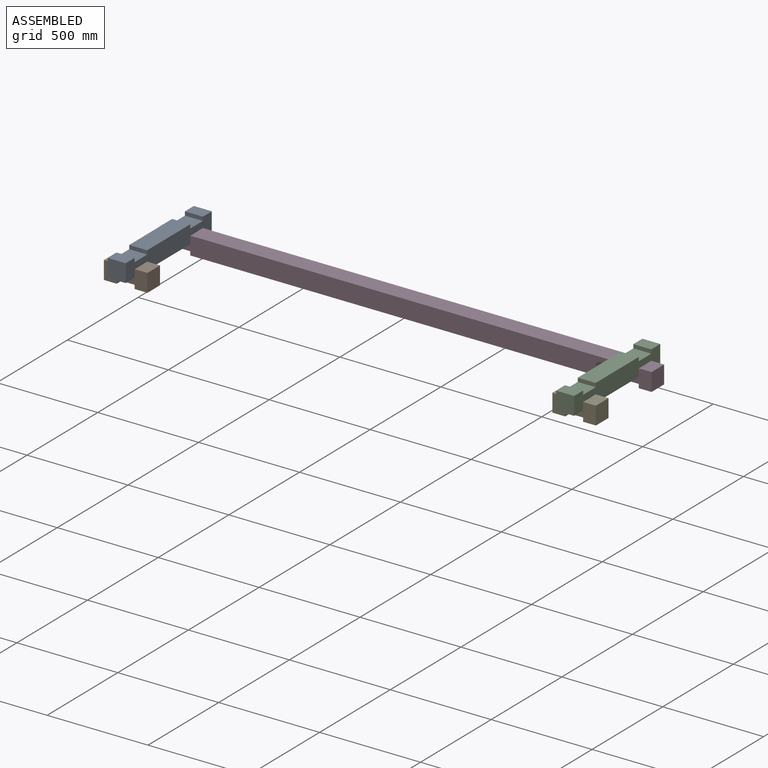
[diagram: assembled view]
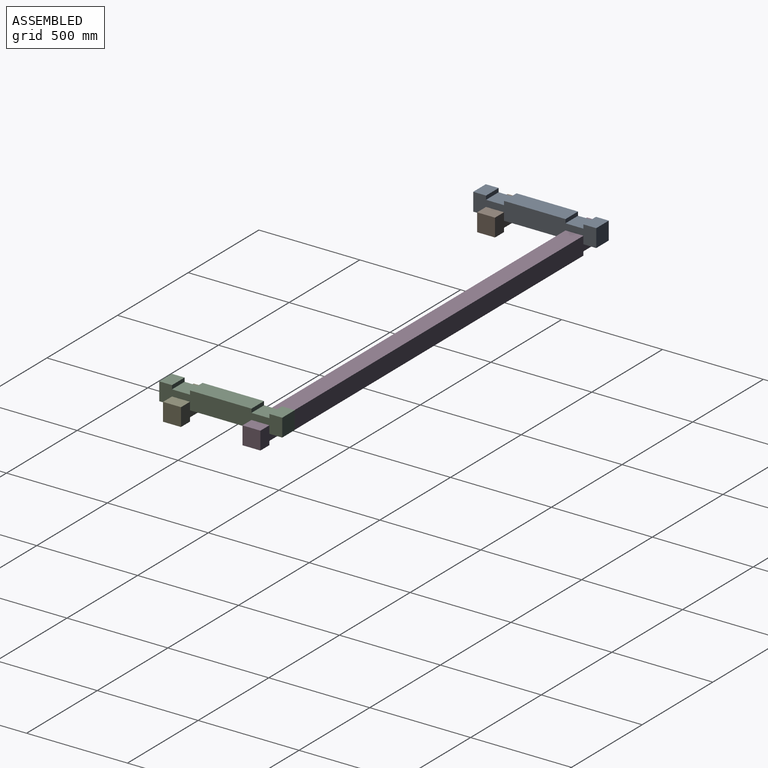
[diagram: assembled view, second angle]
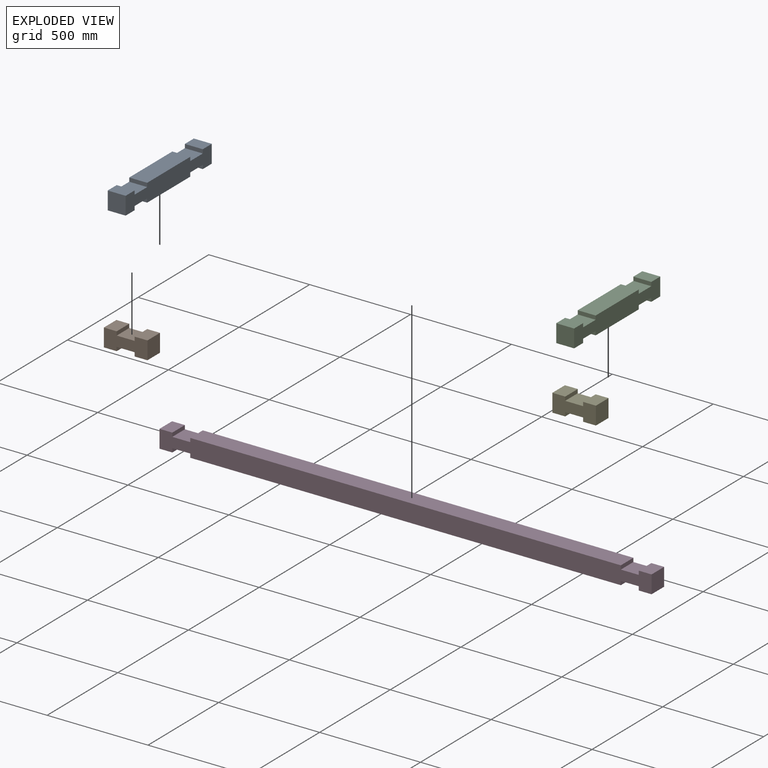
[diagram: exploded view]
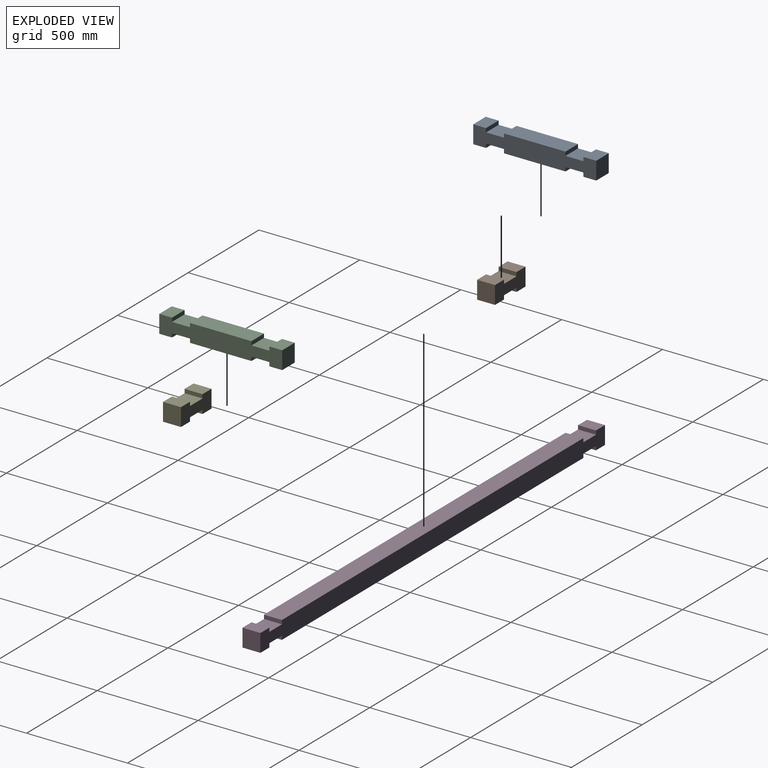
[diagram: exploded view, second angle]
ASSEMBLY  parts=5 mates=4
PART A: 22 faces, bbox 609.6x88.9x88.9 mm
  f0: plane 88.9x63.5mm, normal (0,0,1), area 5645.2mm2, adj f4,f5,f8,f18
  f1: plane 304.8x88.9mm, normal (0,0,1), area 27096.7mm2, adj f4,f5,f12,f16
  f2: plane 304.8x88.9mm, normal (0,0,-1), area 27096.7mm2, adj f4,f5,f13,f20
  f3: plane 88.9x63.5mm, normal (0,0,-1), area 5645.2mm2, adj f4,f5,f8,f14
  f4: plane 609.6x88.9mm, normal (0,-1,0), area 47419.3mm2, adj f0,f1,f2,f3,f6,f7,f8,f9
  f5: plane 609.6x88.9mm, normal (0,1,0), area 47419.3mm2, adj f0,f1,f2,f3,f6,f7,f8,f9
  f6: plane 88.9x63.5mm, normal (0,0,1), area 5645.1mm2, adj f4,f5,f9,f10
  f7: plane 88.9x63.5mm, normal (0,0,-1), area 5645.1mm2, adj f4,f5,f9,f19
  f8: plane 88.9x88.9mm, normal (1,0,0), area 7903.2mm2, adj f0,f3,f4,f5
  f9: plane 88.9x88.9mm, normal (-1,0,0), area 7903.2mm2, adj f4,f5,f6,f7
  f10: plane 88.9x19.05mm, normal (1,0,0), area 1693.5mm2, adj f4,f5,f6,f11
  f11: plane 88.9x88.9mm, normal (0,0,1), area 7903.2mm2, adj f4,f5,f10,f12
  f12: plane 88.9x19.05mm, normal (-1,0,0), area 1693.5mm2, adj f1,f4,f5,f11
  f13: plane 88.9x19.05mm, normal (1,0,0), area 1693.5mm2, adj f2,f4,f5,f15
  f14: plane 88.9x19.05mm, normal (-1,0,0), area 1693.5mm2, adj f3,f4,f5,f15
  f15: plane 88.9x88.9mm, normal (0,0,-1), area 7903.2mm2, adj f4,f5,f13,f14
  f16: plane 88.9x19.05mm, normal (1,0,0), area 1693.5mm2, adj f1,f4,f5,f17
  f17: plane 88.9x88.9mm, normal (0,0,1), area 7903.2mm2, adj f4,f5,f16,f18
  f18: plane 88.9x19.05mm, normal (-1,0,0), area 1693.5mm2, adj f0,f4,f5,f17
  f19: plane 88.9x19.05mm, normal (1,0,0), area 1693.5mm2, adj f4,f5,f7,f21
  f20: plane 88.9x19.05mm, normal (-1,0,0), area 1693.5mm2, adj f2,f4,f5,f21
  f21: plane 88.9x88.9mm, normal (0,0,-1), area 7903.2mm2, adj f4,f5,f19,f20
PART B: 14 faces, bbox 215.9x88.9x88.9 mm
  f0: plane 88.9x63.5mm, normal (0,0,1), area 5645.2mm2, adj f2,f3,f6,f13
  f1: plane 88.9x63.5mm, normal (0,0,-1), area 5645.2mm2, adj f2,f3,f6,f9
  f2: plane 215.9x88.9mm, normal (0,-1,0), area 15806.4mm2, adj f0,f1,f4,f5,f6,f7,f8,f9
  f3: plane 215.9x88.9mm, normal (0,1,0), area 15806.4mm2, adj f0,f1,f4,f5,f6,f7,f8,f9
  f4: plane 88.9x63.5mm, normal (0,0,1), area 5645.2mm2, adj f2,f3,f7,f11
  f5: plane 88.9x63.5mm, normal (0,0,-1), area 5645.2mm2, adj f2,f3,f7,f8
  f6: plane 88.9x88.9mm, normal (1,0,0), area 7903.2mm2, adj f0,f1,f2,f3
  f7: plane 88.9x88.9mm, normal (-1,0,0), area 7903.2mm2, adj f2,f3,f4,f5
  f8: plane 88.9x19.05mm, normal (1,0,0), area 1693.5mm2, adj f2,f3,f5,f10
  f9: plane 88.9x19.05mm, normal (-1,0,0), area 1693.5mm2, adj f1,f2,f3,f10
  f10: plane 88.9x88.9mm, normal (0,0,-1), area 7903.2mm2, adj f2,f3,f8,f9
  f11: plane 88.9x19.05mm, normal (1,0,0), area 1693.5mm2, adj f2,f3,f4,f12
  f12: plane 88.9x88.9mm, normal (0,0,1), area 7903.2mm2, adj f2,f3,f11,f13
  f13: plane 88.9x19.05mm, normal (-1,0,0), area 1693.5mm2, adj f0,f2,f3,f12
PART C: same geometry as A
PART D: 22 faces, bbox 2438.4x88.9x88.9 mm
  f0: plane 88.9x63.5mm, normal (0,0,1), area 5645.2mm2, adj f4,f5,f8,f18
  f1: plane 2133.6x88.9mm, normal (0,0,1), area 189677mm2, adj f4,f5,f12,f16
  f2: plane 2133.6x88.9mm, normal (0,0,-1), area 189677mm2, adj f4,f5,f13,f20
  f3: plane 88.9x63.5mm, normal (0,0,-1), area 5645.2mm2, adj f4,f5,f8,f14
  f4: plane 2438.4x88.9mm, normal (0,-1,0), area 209999.6mm2, adj f0,f1,f2,f3,f6,f7,f8,f9
  f5: plane 2438.4x88.9mm, normal (0,1,0), area 209999.6mm2, adj f0,f1,f2,f3,f6,f7,f8,f9
  f6: plane 88.9x63.5mm, normal (0,0,1), area 5645.2mm2, adj f4,f5,f9,f10
  f7: plane 88.9x63.5mm, normal (0,0,-1), area 5645.2mm2, adj f4,f5,f9,f19
  f8: plane 88.9x88.9mm, normal (1,0,0), area 7903.2mm2, adj f0,f3,f4,f5
  f9: plane 88.9x88.9mm, normal (-1,0,0), area 7903.2mm2, adj f4,f5,f6,f7
  f10: plane 88.9x19.05mm, normal (1,0,0), area 1693.5mm2, adj f4,f5,f6,f11
  f11: plane 88.9x88.9mm, normal (0,0,1), area 7903.2mm2, adj f4,f5,f10,f12
  f12: plane 88.9x19.05mm, normal (-1,0,0), area 1693.5mm2, adj f1,f4,f5,f11
  f13: plane 88.9x19.05mm, normal (1,0,0), area 1693.5mm2, adj f2,f4,f5,f15
  f14: plane 88.9x19.05mm, normal (-1,0,0), area 1693.5mm2, adj f3,f4,f5,f15
  f15: plane 88.9x88.9mm, normal (0,0,-1), area 7903.2mm2, adj f4,f5,f13,f14
  f16: plane 88.9x19.05mm, normal (1,0,0), area 1693.5mm2, adj f1,f4,f5,f17
  f17: plane 88.9x88.9mm, normal (0,0,1), area 7903.2mm2, adj f4,f5,f16,f18
  f18: plane 88.9x19.05mm, normal (-1,0,0), area 1693.5mm2, adj f0,f4,f5,f17
  f19: plane 88.9x19.05mm, normal (1,0,0), area 1693.5mm2, adj f4,f5,f7,f21
  f20: plane 88.9x19.05mm, normal (-1,0,0), area 1693.5mm2, adj f2,f4,f5,f21
  f21: plane 88.9x88.9mm, normal (0,0,-1), area 7903.2mm2, adj f4,f5,f19,f20
PART E: same geometry as B
PLACE A rot(axis=(0,0,-1),90deg) t=(-484.99,445.13,20.17)mm
PLACE B t=(-548.49,-100.97,-30.63)mm
PLACE C rot(axis=(0,0,1),90deg) t=(1826.41,-164.47,20.17)mm
PLACE D t=(-548.49,292.73,-30.63)mm fixed
PLACE E t=(1674.01,-100.97,-30.63)mm
MATE fastened D.f11 <-> A.f21  axis (0,0,1) through (-440.54,337.18,-49.68)mm
MATE fastened E.f12 <-> C.f21  axis (0,0,1) through (1781.96,-56.52,-49.68)mm
MATE fastened D.f17 <-> C.f15  axis (0,0,1) through (1781.96,337.18,-49.68)mm
MATE fastened B.f12 <-> A.f15  axis (0,0,1) through (-440.54,-56.52,-49.68)mm
